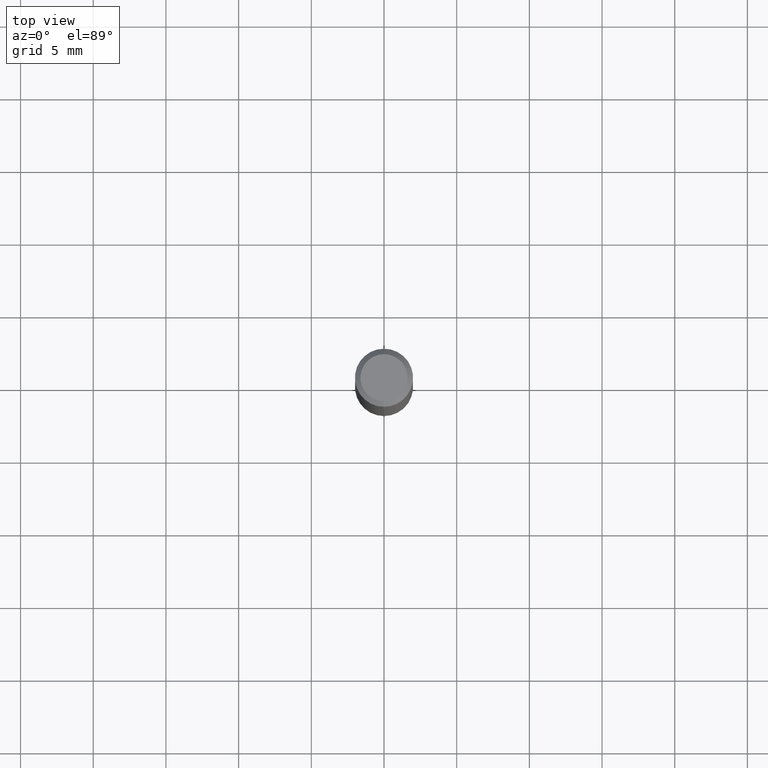
[diagram: clean part render]
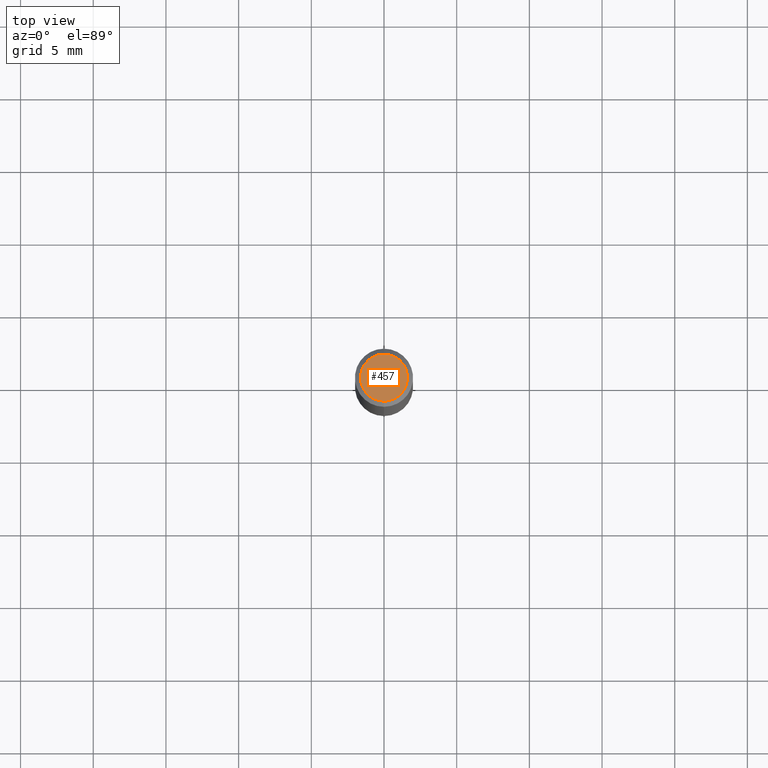
[diagram: same view with one face highlighted and labeled with its STEP entity id]
A machine part, top view. The second image highlights one B-rep face of the part: STEP entity #457.
In plain terms, the highlighted planar face has unit normal (0, -0, -1).
Its self-contained STEP definition (entity closure, byte-faithful):
#31 = CARTESIAN_POINT ( 'NONE',  ( 4.975360907851465623E-16, 0.06375000000000000111, -1.198509431423783275E-16 ) ) ;
#44 = DIRECTION ( 'NONE',  ( -2.446187740284079292E-29, 3.490451784294271843E-15, 1.000000000000000000 ) ) ;
#76 = AXIS2_PLACEMENT_3D ( 'NONE', #321, #313, #83 ) ;
#83 = DIRECTION ( 'NONE',  ( -6.982962677686264344E-15, -1.000000000000000000, 3.490451784294271449E-15 ) ) ;
#97 = CIRCLE ( 'NONE', #266, 0.06375000000000000111 ) ;
#98 = DIRECTION ( 'NONE',  ( 2.446187740284079292E-29, -3.490451784294271449E-15, -1.000000000000000000 ) ) ;
#122 = EDGE_CURVE ( 'NONE', #378, #268, #276, .T. ) ;
#135 = PLANE ( 'NONE',  #451 ) ;
#165 = CARTESIAN_POINT ( 'NONE',  ( 4.451638707024993845E-16, 0.06375000000000000111, -1.711836221955690772E-16 ) ) ;
#215 = FACE_OUTER_BOUND ( 'NONE', #259, .T. ) ;
#256 = DIRECTION ( 'NONE',  ( 6.982962677686265922E-15, 1.000000000000000000, -3.490451784294271449E-15 ) ) ;
#259 = EDGE_LOOP ( 'NONE', ( #382, #376 ) ) ;
#266 = AXIS2_PLACEMENT_3D ( 'NONE', #389, #44, #443 ) ;
#268 = VERTEX_POINT ( 'NONE', #31 ) ;
#276 = CIRCLE ( 'NONE', #76, 0.06375000000000000111 ) ;
#313 = DIRECTION ( 'NONE',  ( -2.446187740284079292E-29, 3.490451784294271843E-15, 1.000000000000000000 ) ) ;
#321 = CARTESIAN_POINT ( 'NONE',  ( -2.511387403517051267E-45, 3.583484823876296715E-31, 1.026653581063814996E-16 ) ) ;
#350 = CARTESIAN_POINT ( 'NONE',  ( -4.888104823412213911E-16, -0.06375000000000000111, 3.251816593551413513E-16 ) ) ;
#376 = ORIENTED_EDGE ( 'NONE', *, *, #122, .T. ) ;
#378 = VERTEX_POINT ( 'NONE', #350 ) ;
#382 = ORIENTED_EDGE ( 'NONE', *, *, #398, .T. ) ;
#389 = CARTESIAN_POINT ( 'NONE',  ( -2.511387403517051267E-45, 3.583484823876296715E-31, 1.026653581063814996E-16 ) ) ;
#398 = EDGE_CURVE ( 'NONE', #268, #378, #97, .T. ) ;
#443 = DIRECTION ( 'NONE',  ( -6.982962677686264344E-15, -1.000000000000000000, 3.490451784294271449E-15 ) ) ;
#451 = AXIS2_PLACEMENT_3D ( 'NONE', #165, #98, #256 ) ;
#457 = ADVANCED_FACE ( 'NONE', ( #215 ), #135, .F. ) ;